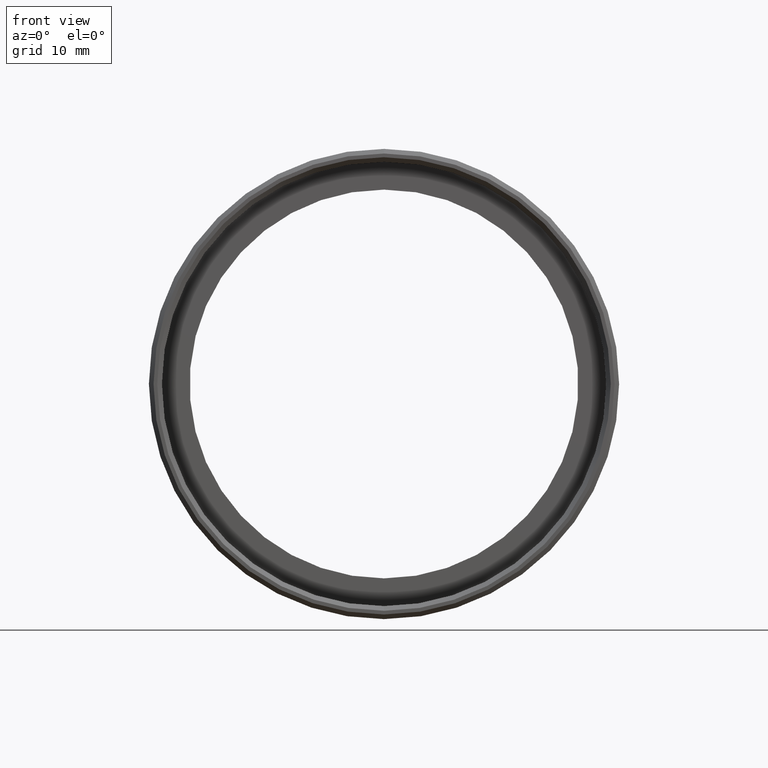
[diagram: clean part render]
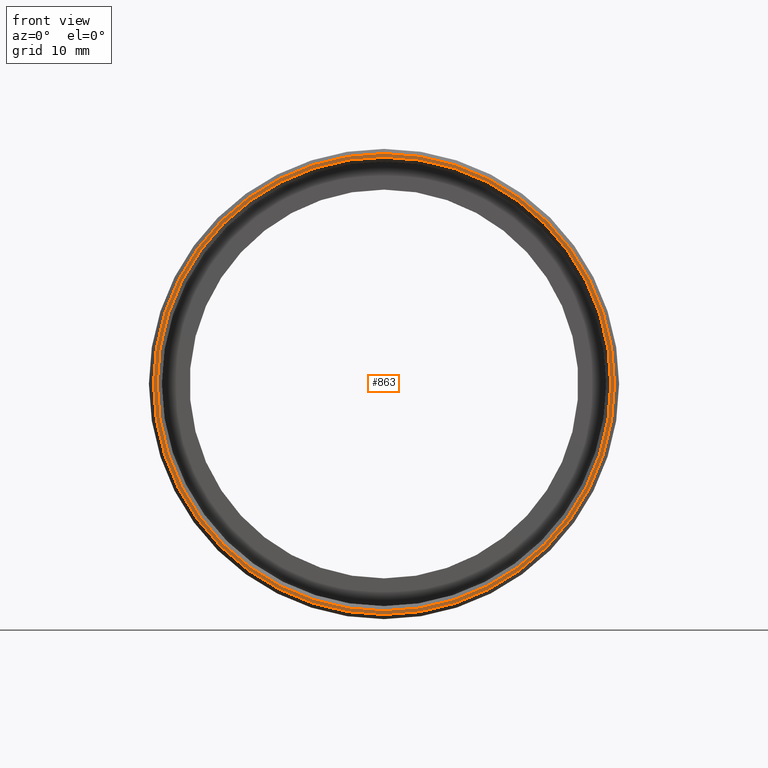
[diagram: same view with one face highlighted and labeled with its STEP entity id]
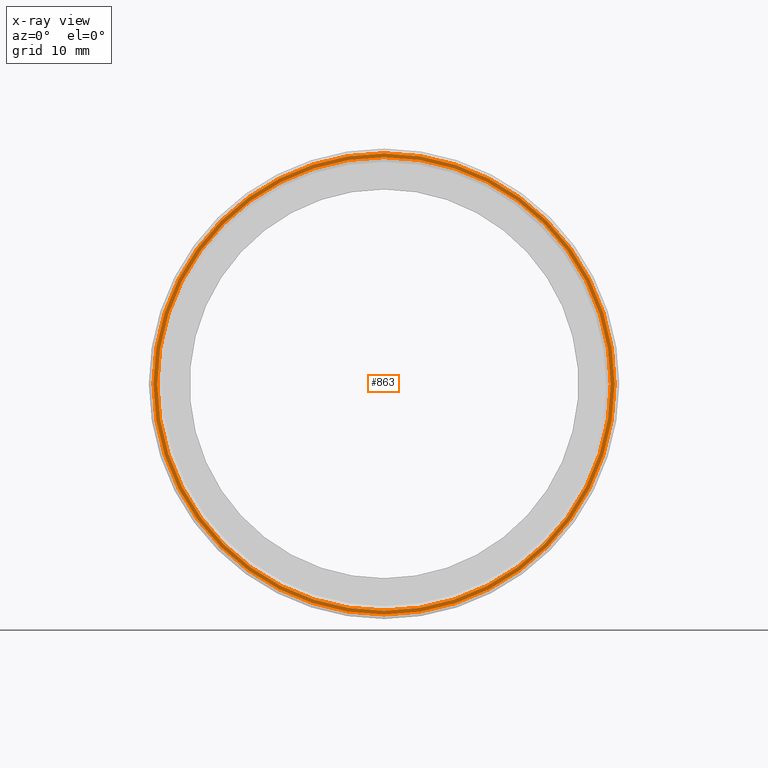
[diagram: x-ray of the same camera — body ghosted, the highlighted face saturated]
A machine part, front view. The second image highlights one B-rep face of the part: STEP entity #863.
The next image is the same camera in x-ray: the body ghosted, the highlighted face saturated — about 0% of this face is hidden behind the body in this view.
In plain terms, the highlighted planar face has unit normal (-0, 1, 0).
Its self-contained STEP definition (entity closure, byte-faithful):
#23 = DIRECTION ( 'NONE',  ( -0.0000000000000000000, 1.000000000000000000, 0.0000000000000000000 ) ) ;
#29 = ORIENTED_EDGE ( 'NONE', *, *, #832, .F. ) ;
#39 = EDGE_LOOP ( 'NONE', ( #363, #76 ) ) ;
#63 = CIRCLE ( 'NONE', #759, 24.90000000000000200 ) ;
#76 = ORIENTED_EDGE ( 'NONE', *, *, #253, .T. ) ;
#97 = VERTEX_POINT ( 'NONE', #737 ) ;
#114 = CARTESIAN_POINT ( 'NONE',  ( 0.0000000000000000000, -5.857145825433105000, 24.90000000000000200 ) ) ;
#177 = CIRCLE ( 'NONE', #612, 24.50000000000000700 ) ;
#191 = DIRECTION ( 'NONE',  ( -0.0000000000000000000, 1.000000000000000000, -0.0000000000000000000 ) ) ;
#203 = VERTEX_POINT ( 'NONE', #680 ) ;
#233 = FACE_OUTER_BOUND ( 'NONE', #257, .T. ) ;
#241 = DIRECTION ( 'NONE',  ( 0.0000000000000000000, 0.0000000000000000000, 1.000000000000000000 ) ) ;
#253 = EDGE_CURVE ( 'NONE', #668, #203, #177, .T. ) ;
#257 = EDGE_LOOP ( 'NONE', ( #734, #29 ) ) ;
#282 = CARTESIAN_POINT ( 'NONE',  ( 24.90000000000000200, -5.857145825433105900, 0.0000000000000000000 ) ) ;
#290 = PLANE ( 'NONE',  #358 ) ;
#294 = CIRCLE ( 'NONE', #452, 24.90000000000000200 ) ;
#342 = DIRECTION ( 'NONE',  ( -0.0000000000000000000, 1.000000000000000000, -0.0000000000000000000 ) ) ;
#358 = AXIS2_PLACEMENT_3D ( 'NONE', #282, #23, #716 ) ;
#363 = ORIENTED_EDGE ( 'NONE', *, *, #443, .T. ) ;
#443 = EDGE_CURVE ( 'NONE', #203, #668, #572, .T. ) ;
#446 = CARTESIAN_POINT ( 'NONE',  ( 0.0000000000000000000, -5.857145825433105000, 0.0000000000000000000 ) ) ;
#452 = AXIS2_PLACEMENT_3D ( 'NONE', #703, #342, #635 ) ;
#478 = VERTEX_POINT ( 'NONE', #114 ) ;
#513 = DIRECTION ( 'NONE',  ( -0.0000000000000000000, 1.000000000000000000, -0.0000000000000000000 ) ) ;
#572 = CIRCLE ( 'NONE', #700, 24.50000000000000700 ) ;
#612 = AXIS2_PLACEMENT_3D ( 'NONE', #890, #191, #823 ) ;
#620 = CARTESIAN_POINT ( 'NONE',  ( 3.000384657911015900E-015, -5.857145825433105000, 24.50000000000000700 ) ) ;
#635 = DIRECTION ( 'NONE',  ( 0.0000000000000000000, 0.0000000000000000000, 1.000000000000000000 ) ) ;
#668 = VERTEX_POINT ( 'NONE', #620 ) ;
#680 = CARTESIAN_POINT ( 'NONE',  ( 0.0000000000000000000, -5.857145825433105000, -24.50000000000000700 ) ) ;
#700 = AXIS2_PLACEMENT_3D ( 'NONE', #446, #862, #241 ) ;
#703 = CARTESIAN_POINT ( 'NONE',  ( 0.0000000000000000000, -5.857145825433105000, 0.0000000000000000000 ) ) ;
#716 = DIRECTION ( 'NONE',  ( 0.0000000000000000000, 0.0000000000000000000, 1.000000000000000000 ) ) ;
#718 = DIRECTION ( 'NONE',  ( 0.0000000000000000000, 0.0000000000000000000, 1.000000000000000000 ) ) ;
#734 = ORIENTED_EDGE ( 'NONE', *, *, #783, .F. ) ;
#737 = CARTESIAN_POINT ( 'NONE',  ( 3.079986699855593900E-015, -5.857145825433105000, -24.90000000000000200 ) ) ;
#759 = AXIS2_PLACEMENT_3D ( 'NONE', #782, #513, #718 ) ;
#777 = FACE_BOUND ( 'NONE', #39, .T. ) ;
#782 = CARTESIAN_POINT ( 'NONE',  ( 0.0000000000000000000, -5.857145825433105000, 0.0000000000000000000 ) ) ;
#783 = EDGE_CURVE ( 'NONE', #478, #97, #294, .T. ) ;
#823 = DIRECTION ( 'NONE',  ( 0.0000000000000000000, 0.0000000000000000000, 1.000000000000000000 ) ) ;
#832 = EDGE_CURVE ( 'NONE', #97, #478, #63, .T. ) ;
#862 = DIRECTION ( 'NONE',  ( -0.0000000000000000000, 1.000000000000000000, -0.0000000000000000000 ) ) ;
#863 = ADVANCED_FACE ( 'NONE', ( #233, #777 ), #290, .F. ) ;
#890 = CARTESIAN_POINT ( 'NONE',  ( 0.0000000000000000000, -5.857145825433105000, 0.0000000000000000000 ) ) ;